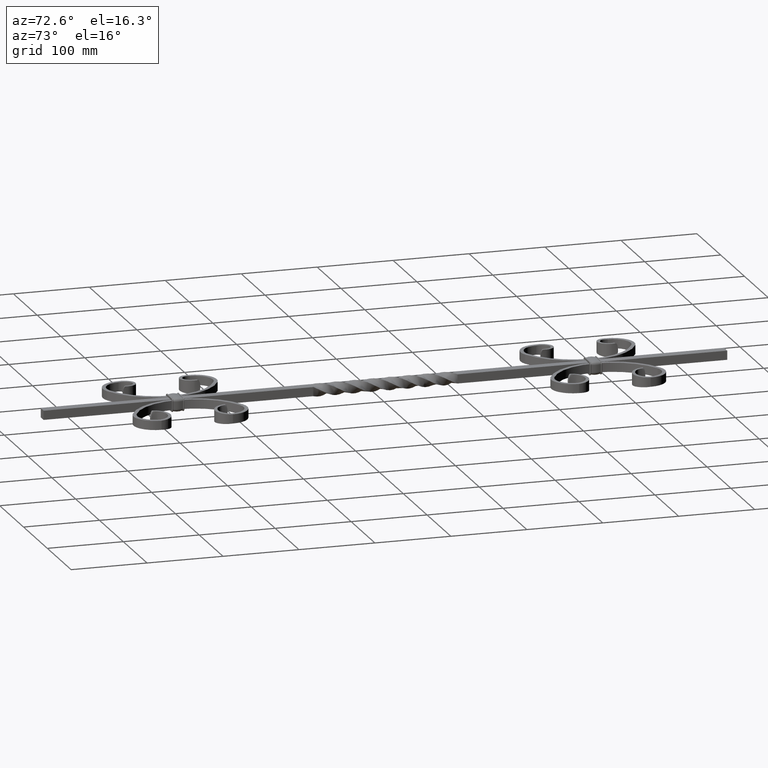
[diagram: clean part render]
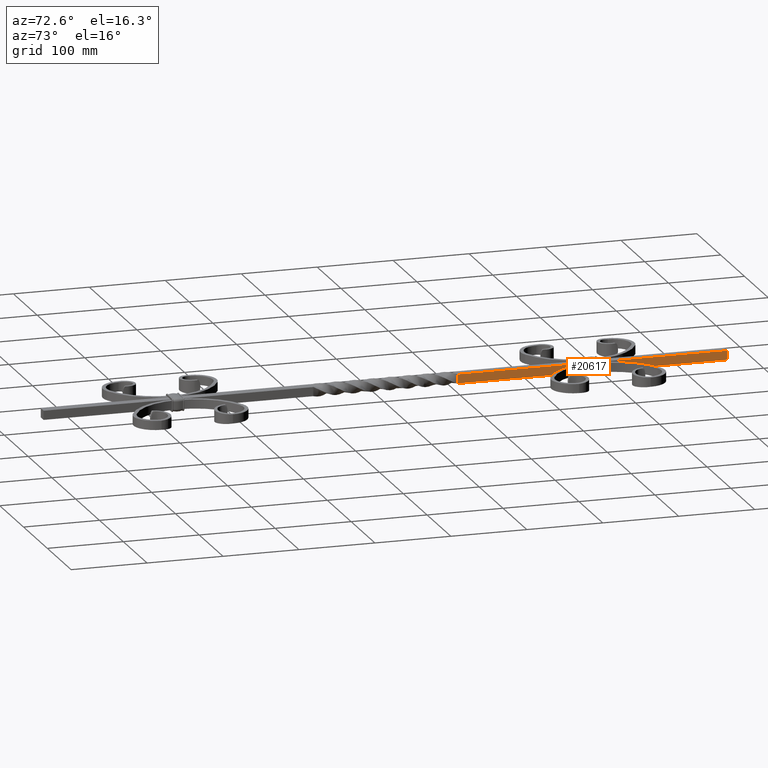
[diagram: same view with one face highlighted and labeled with its STEP entity id]
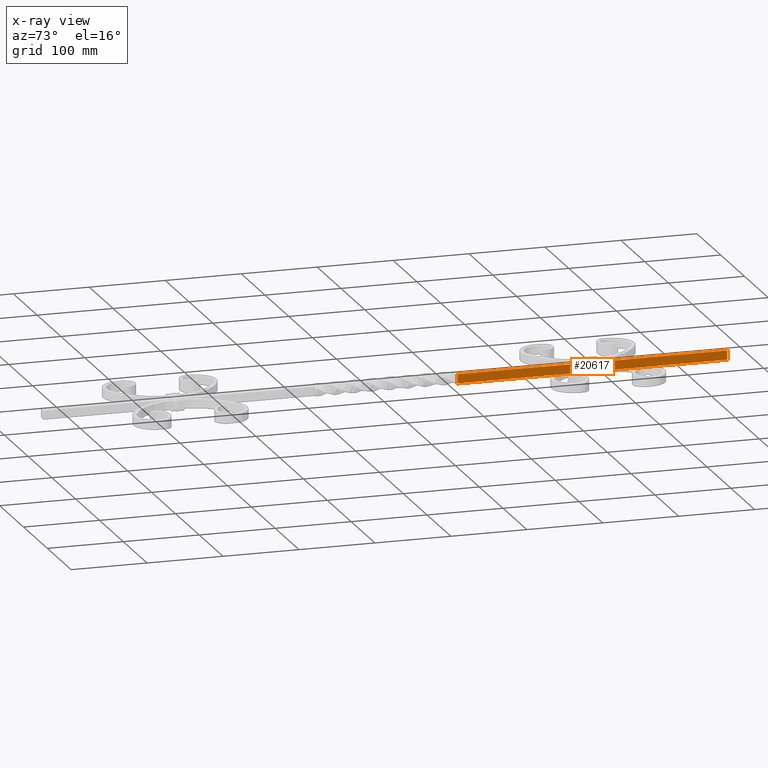
[diagram: x-ray of the same camera — body ghosted, the highlighted face saturated]
A machine part, auxiliary view. The second image highlights one B-rep face of the part: STEP entity #20617.
The next image is the same camera in x-ray: the body ghosted, the highlighted face saturated — about 0% of this face is hidden behind the body in this view.
In plain terms, the highlighted planar face has unit normal (-1, 0, 0).
Its self-contained STEP definition (entity closure, byte-faithful):
#360 = ORIENTED_EDGE ( 'NONE', *, *, #21053, .T. ) ;
#1210 = CARTESIAN_POINT ( 'NONE',  ( 6.000000000000002665, 213.3333333333333712, 5.999999999999999112 ) ) ;
#2413 = ORIENTED_EDGE ( 'NONE', *, *, #18647, .T. ) ;
#2657 = DIRECTION ( 'NONE',  ( 0.000000000000000000, 0.000000000000000000, 1.000000000000000000 ) ) ;
#3803 = EDGE_CURVE ( 'NONE', #12818, #10635, #21931, .T. ) ;
#4074 = CARTESIAN_POINT ( 'NONE',  ( 6.000000000000002665, 450.0000000000000000, 5.999999999999999112 ) ) ;
#5970 = FACE_OUTER_BOUND ( 'NONE', #13116, .T. ) ;
#7752 = CARTESIAN_POINT ( 'NONE',  ( 6.000000000000002665, 450.0000000000000000, -5.999999833333335530 ) ) ;
#7995 = CARTESIAN_POINT ( 'NONE',  ( 6.000000000000002665, 450.0000000000000568, -2.000000000000000444 ) ) ;
#9940 = VERTEX_POINT ( 'NONE', #24141 ) ;
#10151 = CARTESIAN_POINT ( 'NONE',  ( 6.000000000000002665, 450.0000000000000000, -6.000000000000000888 ) ) ;
#10581 = CARTESIAN_POINT ( 'NONE',  ( 6.000000000000001776, 95.00000025000002779, 5.999999999999999112 ) ) ;
#10617 = CARTESIAN_POINT ( 'NONE',  ( 6.000000000000002665, 450.0000000000000000, -5.999999833333335530 ) ) ;
#10635 = VERTEX_POINT ( 'NONE', #10617 ) ;
#10826 = CARTESIAN_POINT ( 'NONE',  ( 5.999999986357885007, 95.00000002627088236, -6.000000007873161678 ) ) ;
#12364 = CARTESIAN_POINT ( 'NONE',  ( 6.000000000000002665, 213.3333333333333712, -6.000000000000000888 ) ) ;
#12413 = CARTESIAN_POINT ( 'NONE',  ( 6.000000000000002665, 331.6666666666667425, 5.999999999999999112 ) ) ;
#12505 = CARTESIAN_POINT ( 'NONE',  ( 6.000000000000002665, 450.0000000000000000, 5.999999999999999112 ) ) ;
#12818 = VERTEX_POINT ( 'NONE', #22186 ) ;
#13033 = AXIS2_PLACEMENT_3D ( 'NONE', #10151, #13867, #2657 ) ;
#13116 = EDGE_LOOP ( 'NONE', ( #2413, #360, #17980, #20336 ) ) ;
#13867 = DIRECTION ( 'NONE',  ( -1.000000000000000000, 0.000000000000000000, 0.000000000000000000 ) ) ;
#14459 = B_SPLINE_CURVE_WITH_KNOTS ( 'NONE', 3,
 ( #12505, #12413, #1210, #21775 ),
 .UNSPECIFIED., .F., .F.,
 ( 4, 4 ),
 ( 0.000000000000000000, 1.000000000000000000 ),
 .UNSPECIFIED. ) ;
#15324 = DIRECTION ( 'NONE',  ( -0.000000000000000000, -0.000000000000000000, -1.000000000000000000 ) ) ;
#15526 = CARTESIAN_POINT ( 'NONE',  ( 6.000000000000002665, 450.0000000000000000, 1.999999999999999556 ) ) ;
#15695 = EDGE_CURVE ( 'NONE', #10635, #9940, #23238, .T. ) ;
#17164 = LINE ( 'NONE', #17303, #21073 ) ;
#17303 = CARTESIAN_POINT ( 'NONE',  ( 6.000000000000002665, 95.00000000000002842, -6.000000000000000888 ) ) ;
#17980 = ORIENTED_EDGE ( 'NONE', *, *, #15695, .F. ) ;
#18647 = EDGE_CURVE ( 'NONE', #12818, #22123, #14459, .T. ) ;
#20120 = CARTESIAN_POINT ( 'NONE',  ( 6.000000000000002665, 331.6666666666667425, -6.000000000000000888 ) ) ;
#20336 = ORIENTED_EDGE ( 'NONE', *, *, #3803, .F. ) ;
#20617 = ADVANCED_FACE ( 'NONE', ( #5970 ), #21527, .F. ) ;
#21053 = EDGE_CURVE ( 'NONE', #22123, #9940, #17164, .T. ) ;
#21073 = VECTOR ( 'NONE', #15324, 1000.000000000000000 ) ;
#21527 = PLANE ( 'NONE',  #13033 ) ;
#21775 = CARTESIAN_POINT ( 'NONE',  ( 6.000000000000001776, 95.00000025000002779, 5.999999999999999112 ) ) ;
#21931 = B_SPLINE_CURVE_WITH_KNOTS ( 'NONE', 3,
 ( #4074, #15526, #7995, #7752 ),
 .UNSPECIFIED., .F., .F.,
 ( 4, 4 ),
 ( 0.000000000000000000, 0.9999999583333334385 ),
 .UNSPECIFIED. ) ;
#22123 = VERTEX_POINT ( 'NONE', #10581 ) ;
#22186 = CARTESIAN_POINT ( 'NONE',  ( 6.000000000000002665, 450.0000000000000000, 5.999999999999999112 ) ) ;
#23238 = B_SPLINE_CURVE_WITH_KNOTS ( 'NONE', 3,
 ( #23898, #20120, #12364, #10826 ),
 .UNSPECIFIED., .F., .F.,
 ( 4, 4 ),
 ( 0.000000000000000000, 1.000000000000000000 ),
 .UNSPECIFIED. ) ;
#23898 = CARTESIAN_POINT ( 'NONE',  ( 6.000000000000002665, 450.0000000000000000, -5.999999833333335530 ) ) ;
#24141 = CARTESIAN_POINT ( 'NONE',  ( 5.999999986357885007, 95.00000002627088236, -6.000000007873161678 ) ) ;